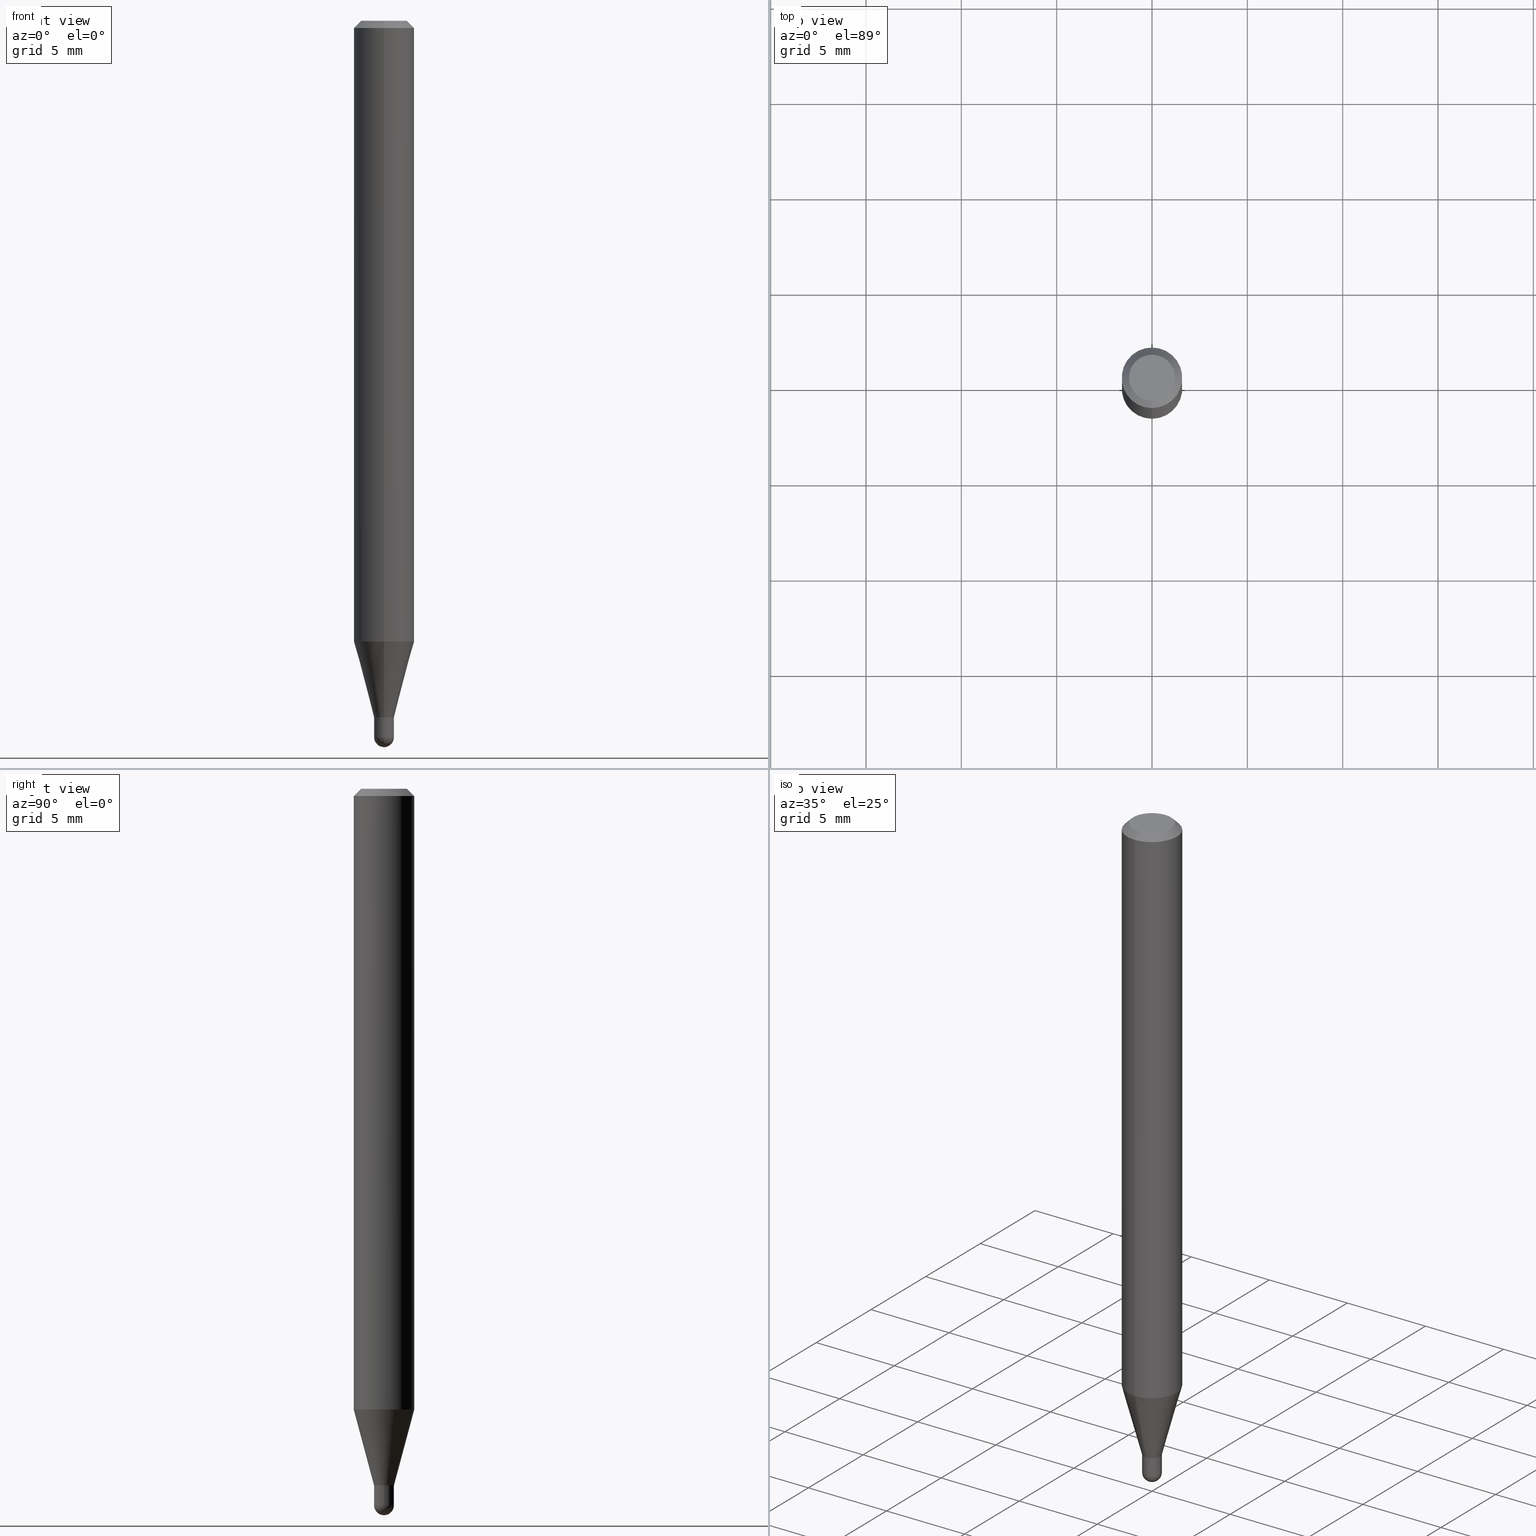
[diagram: canonical four-view strip — front | top / right | iso, engineering-drawing reading convention]
A machine part, canonical four-view strip (front | top / right | iso — engineering-drawing reading convention). The complete STEP part file that produces these views, byte-faithful:
ISO-10303-21;
HEADER;
FILE_DESCRIPTION (( 'STEP AP203' ),
    '1' );
FILE_NAME ('04353.STEP',
    '2024-03-08T18:49:19',
    ( '' ),
    ( '' ),
    'SwSTEP 2.0',
    'SolidWorks 2023',
    '' );
FILE_SCHEMA (( 'CONFIG_CONTROL_DESIGN' ));
ENDSEC;

DATA;
#1 = AXIS2_PLACEMENT_3D ( 'NONE', #435, #464, #112 ) ;
#2 = COORDINATED_UNIVERSAL_TIME_OFFSET ( 5, 0, .BEHIND. ) ;
#3 = AXIS2_PLACEMENT_3D ( 'NONE', #62, #228, #259 ) ;
#4 = CARTESIAN_POINT ( 'NONE',  ( -1.431507348925308261E-16, -0.02050000000000467074, -1.438500000000000334 ) ) ;
#5 = VERTEX_POINT ( 'NONE', #271 ) ;
#6 = DIRECTION ( 'NONE',  ( 1.000000000000000000, -7.105427357601001070E-15, 4.926315508542082329E-29 ) ) ;
#7 = EDGE_CURVE ( 'NONE', #341, #164, #79, .T. ) ;
#8 = PERSON_AND_ORGANIZATION_ROLE ( 'classification_officer' ) ;
#9 = PRODUCT ( '04353', '04353', '', ( #83 ) ) ;
#10 = APPROVAL ( #267, 'UNSPECIFIED' ) ;
#11 = CARTESIAN_POINT ( 'NONE',  ( -1.396592535536901362E-16, -0.02000000000000502418, -1.438499999999999890 ) ) ;
#12 = AXIS2_PLACEMENT_3D ( 'NONE', #43, #320, #359 ) ;
#13 = DIRECTION ( 'NONE',  ( -6.982962677686266711E-15, -1.000000000000000000, 3.491493095811838152E-15 ) ) ;
#14 = COORDINATED_UNIVERSAL_TIME_OFFSET ( 5, 0, .BEHIND. ) ;
#15 = CARTESIAN_POINT ( 'NONE',  ( 3.616318007858092069E-29, -5.168157166756686411E-15, -1.479500000000000259 ) ) ;
#16 = EDGE_CURVE ( 'NONE', #264, #310, #357, .T. ) ;
#17 = CARTESIAN_POINT ( 'NONE',  ( -0.02049999999999999739, -4.948410012541330667E-15, -1.479500000000000481 ) ) ;
#18 = CARTESIAN_POINT ( 'NONE',  ( 1.456612608308565853E-16, 0.02049999999999482098, -1.479500000000000481 ) ) ;
#19 = VECTOR ( 'NONE', #426, 39.37007874015748143 ) ;
#20 = DIRECTION ( 'NONE',  ( -6.982962677686265133E-15, -1.000000000000000000, 0.000000000000000000 ) ) ;
#21 = ORIENTED_EDGE ( 'NONE', *, *, #355, .T. ) ;
#22 = FACE_OUTER_BOUND ( 'NONE', #88, .T. ) ;
#23 = ORIENTED_EDGE ( 'NONE', *, *, #490, .F. ) ;
#24 = ORIENTED_EDGE ( 'NONE', *, *, #57, .T. ) ;
#25 = CARTESIAN_POINT ( 'NONE',  ( 3.517806877697320021E-29, -5.022495905925865349E-15, -1.438500000000000334 ) ) ;
#26 = VECTOR ( 'NONE', #317, 39.37007874015748143 ) ;
#27 = EDGE_LOOP ( 'NONE', ( #206, #457, #159, #24 ) ) ;
#28 = CC_DESIGN_APPROVAL ( #90, ( #415 ) ) ;
#29 = EDGE_CURVE ( 'NONE', #310, #184, #84, .T. ) ;
#30 = FACE_OUTER_BOUND ( 'NONE', #495, .T. ) ;
#31 = ORIENTED_EDGE ( 'NONE', *, *, #283, .F. ) ;
#32 = ORIENTED_EDGE ( 'NONE', *, *, #207, .T. ) ;
#33 = CARTESIAN_POINT ( 'NONE',  ( -1.431507348925660290E-16, -0.02049999999999965045, 7.157560846414145820E-17 ) ) ;
#34 = DIRECTION ( 'NONE',  ( -4.851104656540964275E-15, -0.7071067811865500152, -0.7071067811865450192 ) ) ;
#35 = ORIENTED_EDGE ( 'NONE', *, *, #410, .T. ) ;
#36 = APPLICATION_PROTOCOL_DEFINITION ( 'international standard', 'config_control_design', 1994, #333 ) ;
#37 = DIRECTION ( 'NONE',  ( -2.445460596337778578E-29, 3.491493095811837758E-15, 1.000000000000000000 ) ) ;
#38 = ORIENTED_EDGE ( 'NONE', *, *, #314, .F. ) ;
#39 = AXIS2_PLACEMENT_3D ( 'NONE', #345, #456, #226 ) ;
#40 = APPROVAL_STATUS ( 'not_yet_approved' ) ;
#41 = ORIENTED_EDGE ( 'NONE', *, *, #29, .F. ) ;
#42 = ORIENTED_EDGE ( 'NONE', *, *, #7, .T. ) ;
#43 = CARTESIAN_POINT ( 'NONE',  ( 3.516572337533726564E-29, -5.020767071777423003E-15, -1.438000000000000389 ) ) ;
#44 = VERTEX_POINT ( 'NONE', #472 ) ;
#45 = DIRECTION ( 'NONE',  ( -2.445468806185136597E-29, 3.491481338843145583E-15, 1.000000000000000000 ) ) ;
#46 = LINE ( 'NONE', #4, #486 ) ;
#47 = ORIENTED_EDGE ( 'NONE', *, *, #293, .T. ) ;
#48 = AXIS2_PLACEMENT_3D ( 'NONE', #155, #276, #312 ) ;
#49 = ADVANCED_FACE ( 'NONE', ( #81 ), #442, .T. ) ;
#50 = DATE_TIME_ROLE ( 'classification_date' ) ;
#51 = APPROVAL_PERSON_ORGANIZATION ( #238, #10, #424 ) ;
#52 = LINE ( 'NONE', #477, #198 ) ;
#53 = CC_DESIGN_PERSON_AND_ORGANIZATION_ASSIGNMENT ( #385, #148, ( #415 ) ) ;
#54 = DIRECTION ( 'NONE',  ( 1.000000000000000000, -6.982962677686267499E-15, 4.876176775795935232E-29 ) ) ;
#55 = PRODUCT_DEFINITION_SHAPE ( 'NONE', 'NONE',  #415 ) ;
#56 = DIRECTION ( 'NONE',  ( -6.982962677686266711E-15, -1.000000000000000000, 3.491493095811838152E-15 ) ) ;
#57 = EDGE_CURVE ( 'NONE', #346, #387, #421, .T. ) ;
#58 = CIRCLE ( 'NONE', #91, 0.02000000000000000042 ) ;
#59 = CARTESIAN_POINT ( 'NONE',  ( 1.431507348926036478E-16, 0.02049999999999497710, -1.438500000000000334 ) ) ;
#60 = MANIFOLD_SOLID_BREP ( 'Body-Move/Copy2[2]', #476 ) ;
#61 = FACE_OUTER_BOUND ( 'NONE', #391, .T. ) ;
#62 = CARTESIAN_POINT ( 'NONE',  ( 3.668190894506684298E-31, -5.237239643717779809E-17, -0.01500000000000006710 ) ) ;
#63 = CARTESIAN_POINT ( 'NONE',  ( 3.618071098750910685E-29, -5.165646640818435742E-15, -1.479500000000000481 ) ) ;
#64 = CIRCLE ( 'NONE', #12, 0.02049999999999965045 ) ;
#65 = CC_DESIGN_APPROVAL ( #10, ( #176 ) ) ;
#66 = EDGE_LOOP ( 'NONE', ( #349, #35, #413, #38 ) ) ;
#67 = DIRECTION ( 'NONE',  ( -2.445460596337778578E-29, 3.491493095811837758E-15, 1.000000000000000000 ) ) ;
#68 = ORIENTED_EDGE ( 'NONE', *, *, #119, .T. ) ;
#69 = ORIENTED_EDGE ( 'NONE', *, *, #321, .T. ) ;
#70 = DIRECTION ( 'NONE',  ( -6.982962677686265922E-15, -1.000000000000000000, 3.491493095811837758E-15 ) ) ;
#71 = ORIENTED_EDGE ( 'NONE', *, *, #375, .F. ) ;
#72 = ORIENTED_EDGE ( 'NONE', *, *, #76, .F. ) ;
#73 = CARTESIAN_POINT ( 'NONE',  ( -4.364351673553604601E-16, -0.06250000000000449640, -1.281753866082110838 ) ) ;
#74 = AXIS2_PLACEMENT_3D ( 'NONE', #165, #330, #56 ) ;
#75 = VECTOR ( 'NONE', #106, 39.37007874015748143 ) ;
#76 = EDGE_CURVE ( 'NONE', #222, #412, #141, .T. ) ;
#77 = CARTESIAN_POINT ( 'NONE',  ( 0.000000000000000000, 0.000000000000000000, 0.000000000000000000 ) ) ;
#78 = PERSON_AND_ORGANIZATION ( #256, #170 ) ;
#79 = LINE ( 'NONE', #158, #250 ) ;
#80 = VERTEX_POINT ( 'NONE', #237 ) ;
#81 = FACE_OUTER_BOUND ( 'NONE', #116, .T. ) ;
#82 = LOCAL_TIME ( 13, 49, 19.00000000000000000, #479 ) ;
#83 = MECHANICAL_CONTEXT ( 'NONE', #364, 'mechanical' ) ;
#84 = LINE ( 'NONE', #470, #131 ) ;
#85 = ORIENTED_EDGE ( 'NONE', *, *, #177, .T. ) ;
#86 = CALENDAR_DATE ( 2024, 8, 3 ) ;
#87 = CARTESIAN_POINT ( 'NONE',  ( 3.618071098750910685E-29, -5.165646640818435742E-15, -1.479500000000000481 ) ) ;
#88 = EDGE_LOOP ( 'NONE', ( #41, #195, #42, #313 ) ) ;
#89 = LINE ( 'NONE', #386, #351 ) ;
#90 = APPROVAL ( #40, 'UNSPECIFIED' ) ;
#91 = AXIS2_PLACEMENT_3D ( 'NONE', #401, #332, #123 ) ;
#92 = DIRECTION ( 'NONE',  ( -2.445460596337778298E-29, 3.491493095811837758E-15, 1.000000000000000000 ) ) ;
#93 = DIRECTION ( 'NONE',  ( -2.445460596337778578E-29, 3.491493095811837758E-15, 1.000000000000000000 ) ) ;
#94 = APPROVAL ( #166, 'UNSPECIFIED' ) ;
#95 = VECTOR ( 'NONE', #120, 39.37007874015748143 ) ;
#96 = DIRECTION ( 'NONE',  ( -1.000000000000000000, 6.982962677686265922E-15, -4.876176775795935793E-29 ) ) ;
#97 = FACE_OUTER_BOUND ( 'NONE', #360, .T. ) ;
#98 = DIRECTION ( 'NONE',  ( -2.445460596337778578E-29, 3.491493095811837758E-15, 1.000000000000000000 ) ) ;
#99 = EDGE_LOOP ( 'NONE', ( #471, #21 ) ) ;
#100 = DIRECTION ( 'NONE',  ( -6.982962677686266711E-15, -1.000000000000000000, 0.000000000000000000 ) ) ;
#101 = CC_DESIGN_APPROVAL ( #94, ( #403 ) ) ;
#102 = ORIENTED_EDGE ( 'NONE', *, *, #314, .T. ) ;
#103 = LINE ( 'NONE', #373, #75 ) ;
#104 = ORIENTED_EDGE ( 'NONE', *, *, #355, .F. ) ;
#105 = ORIENTED_EDGE ( 'NONE', *, *, #134, .T. ) ;
#106 = DIRECTION ( 'NONE',  ( 5.024295867788190974E-15, 0.7071067811865681119, 0.7071067811865270336 ) ) ;
#107 = ORIENTED_EDGE ( 'NONE', *, *, #484, .T. ) ;
#108 = AXIS2_PLACEMENT_3D ( 'NONE', #482, #372, #396 ) ;
#109 = ORIENTED_EDGE ( 'NONE', *, *, #485, .F. ) ;
#110 = CIRCLE ( 'NONE', #133, 0.02049999999999999739 ) ;
#111 = CALENDAR_DATE ( 2024, 8, 3 ) ;
#112 = DIRECTION ( 'NONE',  ( -6.982962677686266711E-15, -1.000000000000000000, 0.000000000000000000 ) ) ;
#113 = ORIENTED_EDGE ( 'NONE', *, *, #299, .T. ) ;
#114 = DATE_AND_TIME ( #86, #344 ) ;
#115 = FACE_OUTER_BOUND ( 'NONE', #455, .T. ) ;
#116 = EDGE_LOOP ( 'NONE', ( #145, #261, #102, #295 ) ) ;
#117 = DIRECTION ( 'NONE',  ( -2.445468806185136597E-29, 3.491481338843145583E-15, 1.000000000000000000 ) ) ;
#118 = AXIS2_PLACEMENT_3D ( 'NONE', #59, #439, #96 ) ;
#119 = EDGE_CURVE ( 'NONE', #147, #184, #508, .T. ) ;
#120 = DIRECTION ( 'NONE',  ( 4.937700262164548042E-15, 0.7071067811865451302, -0.7071067811865499042 ) ) ;
#121 = PRODUCT_RELATED_PRODUCT_CATEGORY ( 'detail', '', ( #9 ) ) ;
#122 = CARTESIAN_POINT ( 'NONE',  ( 4.440892098500940720E-16, 0.06249999999999993755, -0.01500000000000028394 ) ) ;
#123 = DIRECTION ( 'NONE',  ( -6.982962677686265922E-15, -1.000000000000000000, 0.000000000000000000 ) ) ;
#124 = AXIS2_PLACEMENT_3D ( 'NONE', #441, #217, #54 ) ;
#125 = AXIS2_PLACEMENT_3D ( 'NONE', #221, #67, #175 ) ;
#126 = DIRECTION ( 'NONE',  ( -2.445460596337778578E-29, 3.491493095811837758E-15, 1.000000000000000000 ) ) ;
#127 = PERSON_AND_ORGANIZATION ( #256, #170 ) ;
#128 = CARTESIAN_POINT ( 'NONE',  ( 3.134478573707413274E-29, -4.475234773955820986E-15, -1.281753866082111060 ) ) ;
#129 = PERSON_AND_ORGANIZATION_ROLE ( 'design_supplier' ) ;
#130 = CARTESIAN_POINT ( 'NONE',  ( 2.948752353404736400E-16, 0.02049999999999462322, -1.438500000000000334 ) ) ;
#131 = VECTOR ( 'NONE', #234, 39.37007874015748143 ) ;
#132 = DIRECTION ( 'NONE',  ( -4.937700262164674260E-15, -0.7071067811865632269, 0.7071067811865319186 ) ) ;
#133 = AXIS2_PLACEMENT_3D ( 'NONE', #510, #45, #311 ) ;
#134 = EDGE_CURVE ( 'NONE', #262, #147, #450, .T. ) ;
#135 = FACE_OUTER_BOUND ( 'NONE', #66, .T. ) ;
#136 = ADVANCED_FACE ( 'NONE', ( #354 ), #174, .T. ) ;
#137 = ORIENTED_EDGE ( 'NONE', *, *, #375, .T. ) ;
#138 = DIRECTION ( 'NONE',  ( -2.445468806185136597E-29, 3.491481338843145583E-15, 1.000000000000000000 ) ) ;
#139 = ORIENTED_EDGE ( 'NONE', *, *, #16, .T. ) ;
#140 = DIRECTION ( 'NONE',  ( -2.445460596337778578E-29, 3.491493095811837758E-15, 1.000000000000000000 ) ) ;
#141 = CIRCLE ( 'NONE', #461, 0.02049999999999999739 ) ;
#142 = AXIS2_PLACEMENT_3D ( 'NONE', #406, #178, #218 ) ;
#143 = EDGE_LOOP ( 'NONE', ( #305, #107, #447, #384, #104 ) ) ;
#144 = DIRECTION ( 'NONE',  ( -2.445460596337778578E-29, 3.491493095811837758E-15, 1.000000000000000000 ) ) ;
#145 = ORIENTED_EDGE ( 'NONE', *, *, #410, .F. ) ;
#146 = FACE_OUTER_BOUND ( 'NONE', #419, .T. ) ;
#147 = VERTEX_POINT ( 'NONE', #392 ) ;
#148 = PERSON_AND_ORGANIZATION_ROLE ( 'creator' ) ;
#149 = CARTESIAN_POINT ( 'NONE',  ( 1.456612608308531833E-16, 0.02049999999999462322, -1.438500000000000334 ) ) ;
#150 = CLOSED_SHELL ( 'NONE', ( #168, #292, #253, #329, #287 ) ) ;
#151 = CIRCLE ( 'NONE', #275, 0.02049999999999999739 ) ;
#152 = ORIENTED_EDGE ( 'NONE', *, *, #212, .T. ) ;
#153 = PERSON_AND_ORGANIZATION ( #256, #170 ) ;
#154 = DIRECTION ( 'NONE',  ( 6.982962677686265922E-15, 1.000000000000000000, -3.483106191921935554E-15 ) ) ;
#155 = CARTESIAN_POINT ( 'NONE',  ( 3.134478573707413274E-29, -4.475234773955820986E-15, -1.281753866082111060 ) ) ;
#156 = EDGE_CURVE ( 'NONE', #310, #341, #288, .T. ) ;
#157 = DIRECTION ( 'NONE',  ( -2.445460596337778578E-29, 3.491493095811837758E-15, 1.000000000000000000 ) ) ;
#158 = CARTESIAN_POINT ( 'NONE',  ( -4.364351673553916201E-16, -0.06250000000000000000, 2.182183184882398598E-16 ) ) ;
#159 = ORIENTED_EDGE ( 'NONE', *, *, #490, .T. ) ;
#160 = AXIS2_PLACEMENT_3D ( 'NONE', #77, #390, #230 ) ;
#161 = CALENDAR_DATE ( 2024, 8, 3 ) ;
#162 = ADVANCED_FACE ( 'NONE', ( #433 ), #239, .T. ) ;
#163 = DIRECTION ( 'NONE',  ( -1.807323732225378654E-15, -0.2588190451025251249, 0.9659258262890670910 ) ) ;
#164 = VERTEX_POINT ( 'NONE', #394 ) ;
#165 = CARTESIAN_POINT ( 'NONE',  ( 0.000000000000000000, 0.000000000000000000, 0.000000000000000000 ) ) ;
#166 = APPROVAL_STATUS ( 'not_yet_approved' ) ;
#167 = DIRECTION ( 'NONE',  ( -2.445460596337778578E-29, 3.491493095811837758E-15, 1.000000000000000000 ) ) ;
#168 = ADVANCED_FACE ( 'NONE', ( #115 ), #315, .T. ) ;
#169 = VECTOR ( 'NONE', #285, 39.37007874015748143 ) ;
#170 = ORGANIZATION ( 'UNSPECIFIED', 'UNSPECIFIED', '' ) ;
#171 = CYLINDRICAL_SURFACE ( 'NONE', #124, 0.02050000000000000086 ) ;
#172 = DIRECTION ( 'NONE',  ( 1.000000000000000000, -6.982962677686265922E-15, 4.883557194083113462E-29 ) ) ;
#173 = FACE_OUTER_BOUND ( 'NONE', #296, .T. ) ;
#174 = CONICAL_SURFACE ( 'NONE', #280, 0.06250000000000000000, 0.7853981633974483900 ) ;
#175 = DIRECTION ( 'NONE',  ( -6.982962677686265922E-15, -1.000000000000000000, 0.000000000000000000 ) ) ;
#176 = PRODUCT_DEFINITION_FORMATION_WITH_SPECIFIED_SOURCE ( 'ANY', '', #9, .NOT_KNOWN. ) ;
#177 = EDGE_CURVE ( 'NONE', #387, #346, #64, .T. ) ;
#178 = DIRECTION ( 'NONE',  ( 2.445460596337778298E-29, -3.491493095811837758E-15, -1.000000000000000000 ) ) ;
#179 = ORIENTED_EDGE ( 'NONE', *, *, #76, .T. ) ;
#180 = ORIENTED_EDGE ( 'NONE', *, *, #183, .T. ) ;
#181 = CYLINDRICAL_SURFACE ( 'NONE', #382, 0.06250000000000000000 ) ;
#182 = ORIENTED_EDGE ( 'NONE', *, *, #475, .F. ) ;
#183 = EDGE_CURVE ( 'NONE', #339, #341, #46, .T. ) ;
#184 = VERTEX_POINT ( 'NONE', #122 ) ;
#185 = DIRECTION ( 'NONE',  ( 1.000000000000000000, -6.982962677686261977E-15, 0.000000000000000000 ) ) ;
#186 = CIRCLE ( 'NONE', #265, 0.02049999999999999739 ) ;
#187 = CIRCLE ( 'NONE', #363, 0.06250000000000000000 ) ;
#188 = ORIENTED_EDGE ( 'NONE', *, *, #193, .F. ) ;
#189 = ORIENTED_EDGE ( 'NONE', *, *, #119, .F. ) ;
#190 = CARTESIAN_POINT ( 'NONE',  ( -0.02050000000000000086, 1.456612608308205442E-16, -1.008381693502255795E-30 ) ) ;
#191 = ORIENTED_EDGE ( 'NONE', *, *, #243, .F. ) ;
#192 = CARTESIAN_POINT ( 'NONE',  ( 3.517795067831895441E-29, -5.022512818325329476E-15, -1.438500000000000334 ) ) ;
#193 = EDGE_CURVE ( 'NONE', #262, #164, #89, .T. ) ;
#194 = CARTESIAN_POINT ( 'NONE',  ( 3.517795067831894881E-29, -5.022512818325328687E-15, -1.438499999999999890 ) ) ;
#195 = ORIENTED_EDGE ( 'NONE', *, *, #156, .T. ) ;
#196 = COORDINATED_UNIVERSAL_TIME_OFFSET ( 5, 0, .BEHIND. ) ;
#197 = DIRECTION ( 'NONE',  ( -6.982962677686266711E-15, -1.000000000000000000, 3.491493095811838152E-15 ) ) ;
#198 = VECTOR ( 'NONE', #126, 39.37007874015748143 ) ;
#199 = APPROVAL_PERSON_ORGANIZATION ( #78, #90, #361 ) ;
#200 = ORIENTED_EDGE ( 'NONE', *, *, #156, .F. ) ;
#201 = CARTESIAN_POINT ( 'NONE',  ( 0.02050000000000000086, -5.165646640818434164E-15, -1.438500000000000334 ) ) ;
#202 = DIRECTION ( 'NONE',  ( -2.445460596337778578E-29, 3.491493095811837758E-15, 1.000000000000000000 ) ) ;
#203 = ADVANCED_FACE ( 'NONE', ( #247 ), #399, .F. ) ;
#204 = COORDINATED_UNIVERSAL_TIME_OFFSET ( 5, 0, .BEHIND. ) ;
#205 = ORIENTED_EDGE ( 'NONE', *, *, #342, .T. ) ;
#206 = ORIENTED_EDGE ( 'NONE', *, *, #321, .F. ) ;
#207 = EDGE_CURVE ( 'NONE', #147, #262, #274, .T. ) ;
#208 = DIRECTION ( 'NONE',  ( -6.982962677686265922E-15, -1.000000000000000000, 3.491493095811837758E-15 ) ) ;
#209 = CIRCLE ( 'NONE', #335, 0.02049999999999998004 ) ;
#210 = DIRECTION ( 'NONE',  ( -2.445460596337778578E-29, 3.491493095811837758E-15, 1.000000000000000000 ) ) ;
#211 = DIRECTION ( 'NONE',  ( -6.982962677686266711E-15, -1.000000000000000000, 0.000000000000000000 ) ) ;
#212 = EDGE_CURVE ( 'NONE', #44, #412, #308, .T. ) ;
#213 = PLANE ( 'NONE',  #118 ) ;
#214 = CIRCLE ( 'NONE', #343, 0.06250000000000000000 ) ;
#215 = CONICAL_SURFACE ( 'NONE', #443, 0.02049999999999964698, 0.2617993877991574569 ) ;
#216 = DIRECTION ( 'NONE',  ( 1.000000000000000000, -6.982962677686262766E-15, 0.000000000000000000 ) ) ;
#217 = DIRECTION ( 'NONE',  ( -2.445468806185136597E-29, 3.491481338843145583E-15, 1.000000000000000000 ) ) ;
#218 = DIRECTION ( 'NONE',  ( 6.982962677686265922E-15, 1.000000000000000000, -3.491493095811837758E-15 ) ) ;
#219 = AXIS2_PLACEMENT_3D ( 'NONE', #251, #210, #211 ) ;
#220 = AXIS2_PLACEMENT_3D ( 'NONE', #25, #138, #185 ) ;
#221 = CARTESIAN_POINT ( 'NONE',  ( 3.517795067831894881E-29, -5.022512818325328687E-15, -1.438499999999999890 ) ) ;
#222 = VERTEX_POINT ( 'NONE', #474 ) ;
#223 = ORIENTED_EDGE ( 'NONE', *, *, #299, .F. ) ;
#224 = CARTESIAN_POINT ( 'NONE',  ( 3.616318007858092069E-29, -5.168157166756686411E-15, -1.479500000000000259 ) ) ;
#225 = VERTEX_POINT ( 'NONE', #290 ) ;
#226 = DIRECTION ( 'NONE',  ( -6.982962677686266711E-15, -1.000000000000000000, 3.491493095811838152E-15 ) ) ;
#227 = EDGE_LOOP ( 'NONE', ( #417, #137, #509, #223 ) ) ;
#228 = DIRECTION ( 'NONE',  ( 2.445460596337778578E-29, -3.491493095811837758E-15, -1.000000000000000000 ) ) ;
#229 = CIRCLE ( 'NONE', #220, 0.02050000000000000086 ) ;
#230 = DIRECTION ( 'NONE',  ( 1.000000000000000000, 0.000000000000000000, 0.000000000000000000 ) ) ;
#231 = EDGE_LOOP ( 'NONE', ( #47, #139, #272, #468 ) ) ;
#232 =( LENGTH_UNIT ( ) NAMED_UNIT ( * ) SI_UNIT ( $, .METRE. ) );
#233 = DIRECTION ( 'NONE',  ( -2.445460596337778578E-29, 3.491493095811837758E-15, 1.000000000000000000 ) ) ;
#234 = DIRECTION ( 'NONE',  ( -2.445460596337778578E-29, 3.491493095811837758E-15, 1.000000000000000000 ) ) ;
#235 = AXIS2_PLACEMENT_3D ( 'NONE', #511, #37, #197 ) ;
#236 = DIRECTION ( 'NONE',  ( 1.000000000000000000, -6.982962677686262766E-15, 0.000000000000000000 ) ) ;
#237 = CARTESIAN_POINT ( 'NONE',  ( -1.431507348925322066E-16, -0.02050000000000515646, -1.479500000000000481 ) ) ;
#238 = PERSON_AND_ORGANIZATION ( #256, #170 ) ;
#239 = CYLINDRICAL_SURFACE ( 'NONE', #501, 0.06250000000000000000 ) ;
#240 = PERSON_AND_ORGANIZATION ( #256, #170 ) ;
#241 = CARTESIAN_POINT ( 'NONE',  ( 0.02050000000000000086, -1.431507348925684942E-16, 9.996162390381667465E-31 ) ) ;
#242 = APPROVAL_PERSON_ORGANIZATION ( #240, #94, #481 ) ;
#243 = EDGE_CURVE ( 'NONE', #225, #5, #58, .T. ) ;
#244 = DIRECTION ( 'NONE',  ( -6.982962677686265922E-15, -1.000000000000000000, 3.491493095811837758E-15 ) ) ;
#245 = ADVANCED_FACE ( 'NONE', ( #61 ), #279, .F. ) ;
#246 = SHAPE_DEFINITION_REPRESENTATION ( #55, #277 ) ;
#247 = FACE_OUTER_BOUND ( 'NONE', #27, .T. ) ;
#248 = CARTESIAN_POINT ( 'NONE',  ( -3.773273898774340269E-16, -0.04749999999999999362, 1.003462464546789391E-16 ) ) ;
#249 = EDGE_CURVE ( 'NONE', #341, #310, #214, .T. ) ;
#250 = VECTOR ( 'NONE', #202, 39.37007874015748143 ) ;
#251 = CARTESIAN_POINT ( 'NONE',  ( 3.517795067831895441E-29, -5.022512818325329476E-15, -1.438500000000000334 ) ) ;
#252 = CC_DESIGN_PERSON_AND_ORGANIZATION_ASSIGNMENT ( #356, #129, ( #176 ) ) ;
#253 = ADVANCED_FACE ( 'NONE', ( #284 ), #213, .F. ) ;
#254 = PLANE ( 'NONE',  #142 ) ;
#255 = UNCERTAINTY_MEASURE_WITH_UNIT (LENGTH_MEASURE( 1.000000000000000082E-05 ), #358, 'distance_accuracy_value', 'NONE');
#256 = PERSON ( 'UNSPECIFIED', 'UNSPECIFIED', 'UNSPECIFIED', ('UNSPECIFIED'), ('UNSPECIFIED'), ('UNSPECIFIED') ) ;
#257 = DIRECTION ( 'NONE',  ( -6.982962677686265922E-15, -1.000000000000000000, 0.000000000000000000 ) ) ;
#258 = AXIS2_PLACEMENT_3D ( 'NONE', #411, #489, #383 ) ;
#259 = DIRECTION ( 'NONE',  ( 6.982962677686265922E-15, 1.000000000000000000, -3.483106191921935554E-15 ) ) ;
#260 = DIRECTION ( 'NONE',  ( -6.982962677686266711E-15, -1.000000000000000000, 0.000000000000000000 ) ) ;
#261 = ORIENTED_EDGE ( 'NONE', *, *, #475, .T. ) ;
#262 = VERTEX_POINT ( 'NONE', #248 ) ;
#263 = CARTESIAN_POINT ( 'NONE',  ( 3.668190894506684298E-31, -5.237239643717779809E-17, -0.01500000000000006710 ) ) ;
#264 = VERTEX_POINT ( 'NONE', #130 ) ;
#265 = AXIS2_PLACEMENT_3D ( 'NONE', #331, #405, #216 ) ;
#266 = LOCAL_TIME ( 13, 49, 19.00000000000000000, #196 ) ;
#267 = APPROVAL_STATUS ( 'not_yet_approved' ) ;
#268 = DIRECTION ( 'NONE',  ( -2.445468806185136597E-29, 3.491481338843145583E-15, 1.000000000000000000 ) ) ;
#269 = DIMENSIONAL_EXPONENTS ( 1.000000000000000000, 0.000000000000000000, 0.000000000000000000, 0.000000000000000000, 0.000000000000000000, 0.000000000000000000, 0.000000000000000000 ) ;
#270 = APPLICATION_PROTOCOL_DEFINITION ( 'international standard', 'config_control_design', 1994, #364 ) ;
#271 = CARTESIAN_POINT ( 'NONE',  ( 1.438849039914541639E-16, 0.01999999999999497666, -1.438499999999999890 ) ) ;
#272 = ORIENTED_EDGE ( 'NONE', *, *, #249, .F. ) ;
#273 = DIRECTION ( 'NONE',  ( 1.000000000000000000, -6.982962677686267499E-15, 4.876176775795935232E-29 ) ) ;
#274 = CIRCLE ( 'NONE', #368, 0.04749999999999999362 ) ;
#275 = AXIS2_PLACEMENT_3D ( 'NONE', #63, #338, #236 ) ;
#276 = DIRECTION ( 'NONE',  ( -2.445460596337778578E-29, 3.491493095811837758E-15, 1.000000000000000000 ) ) ;
#277 = ADVANCED_BREP_SHAPE_REPRESENTATION ( '04353', ( #395, #60, #160 ), #397 ) ;
#278 = DIRECTION ( 'NONE',  ( -6.982962677686265922E-15, -1.000000000000000000, 0.000000000000000000 ) ) ;
#279 = PLANE ( 'NONE',  #374 ) ;
#280 = AXIS2_PLACEMENT_3D ( 'NONE', #427, #504, #154 ) ;
#281 = CC_DESIGN_DATE_AND_TIME_ASSIGNMENT ( #371, #50, ( #403 ) ) ;
#282 = FACE_OUTER_BOUND ( 'NONE', #227, .T. ) ;
#283 = EDGE_CURVE ( 'NONE', #222, #496, #398, .T. ) ;
#284 = FACE_OUTER_BOUND ( 'NONE', #99, .T. ) ;
#285 = DIRECTION ( 'NONE',  ( -2.445468806185136877E-29, 3.491481338843145188E-15, 1.000000000000000000 ) ) ;
#286 = DESIGN_CONTEXT ( 'detailed design', #333, 'design' ) ;
#287 = ADVANCED_FACE ( 'NONE', ( #367 ), #171, .T. ) ;
#288 = CIRCLE ( 'NONE', #48, 0.06250000000000000000 ) ;
#289 = AXIS2_PLACEMENT_3D ( 'NONE', #494, #140, #414 ) ;
#290 = CARTESIAN_POINT ( 'NONE',  ( -1.396592535536901362E-16, -0.02000000000000502418, -1.438499999999999890 ) ) ;
#291 = LINE ( 'NONE', #190, #429 ) ;
#292 = ADVANCED_FACE ( 'NONE', ( #173 ), #370, .T. ) ;
#293 = EDGE_CURVE ( 'NONE', #339, #264, #402, .T. ) ;
#294 = CARTESIAN_POINT ( 'NONE',  ( 3.517795067831895441E-29, -5.022512818325329476E-15, -1.438500000000000334 ) ) ;
#295 = ORIENTED_EDGE ( 'NONE', *, *, #177, .F. ) ;
#296 = EDGE_LOOP ( 'NONE', ( #71, #152, #72, #109 ) ) ;
#297 = DIRECTION ( 'NONE',  ( -1.000000000000000000, 6.982962677686265922E-15, -4.883557194083112340E-29 ) ) ;
#298 = ORIENTED_EDGE ( 'NONE', *, *, #16, .F. ) ;
#299 = EDGE_CURVE ( 'NONE', #412, #304, #186, .T. ) ;
#300 = DIRECTION ( 'NONE',  ( -2.445460596337778578E-29, 3.491493095811837758E-15, 1.000000000000000000 ) ) ;
#301 = ORIENTED_EDGE ( 'NONE', *, *, #505, .T. ) ;
#302 = DIRECTION ( 'NONE',  ( -6.982962677686265922E-15, -1.000000000000000000, 3.483106191921935554E-15 ) ) ;
#303 = EDGE_CURVE ( 'NONE', #496, #377, #334, .T. ) ;
#304 = VERTEX_POINT ( 'NONE', #17 ) ;
#305 = ORIENTED_EDGE ( 'NONE', *, *, #347, .F. ) ;
#306 = AXIS2_PLACEMENT_3D ( 'NONE', #365, #6, #324 ) ;
#307 = DATE_TIME_ROLE ( 'creation_date' ) ;
#308 = CIRCLE ( 'NONE', #306, 0.02049999999999998004 ) ;
#309 = CC_DESIGN_SECURITY_CLASSIFICATION ( #403, ( #176 ) ) ;
#310 = VERTEX_POINT ( 'NONE', #483 ) ;
#311 = DIRECTION ( 'NONE',  ( 1.000000000000000000, -6.982962677686262766E-15, 0.000000000000000000 ) ) ;
#312 = DIRECTION ( 'NONE',  ( -6.982962677686265922E-15, -1.000000000000000000, 4.370956789862821150E-15 ) ) ;
#313 = ORIENTED_EDGE ( 'NONE', *, *, #342, .F. ) ;
#314 = EDGE_CURVE ( 'NONE', #225, #346, #366, .T. ) ;
#315 = CYLINDRICAL_SURFACE ( 'NONE', #492, 0.02050000000000000086 ) ;
#316 =( NAMED_UNIT ( * ) PLANE_ANGLE_UNIT ( ) SI_UNIT ( $, .RADIAN. ) );
#317 = DIRECTION ( 'NONE',  ( 1.839019923739649619E-15, 0.2588190451025318972, 0.9659258262890653146 ) ) ;
#318 = AXIS2_PLACEMENT_3D ( 'NONE', #194, #233, #278 ) ;
#319 = CONICAL_SURFACE ( 'NONE', #438, 0.02049999999999964698, 0.2617993877991574569 ) ;
#320 = DIRECTION ( 'NONE',  ( -2.445460596337778578E-29, 3.491493095811837758E-15, 1.000000000000000000 ) ) ;
#321 = EDGE_CURVE ( 'NONE', #264, #387, #52, .T. ) ;
#322 = EDGE_LOOP ( 'NONE', ( #416, #69, #85, #23 ) ) ;
#323 = CC_DESIGN_PERSON_AND_ORGANIZATION_ASSIGNMENT ( #431, #463, ( #9 ) ) ;
#324 = DIRECTION ( 'NONE',  ( 7.105427357601000281E-15, 1.000000000000000000, 0.000000000000000000 ) ) ;
#325 = APPROVAL_DATE_TIME ( #440, #94 ) ;
#326 = DIRECTION ( 'NONE',  ( -6.982962677686265922E-15, -1.000000000000000000, 0.000000000000000000 ) ) ;
#327 = CIRCLE ( 'NONE', #289, 0.06250000000000000000 ) ;
#328 = LOCAL_TIME ( 13, 49, 19.00000000000000000, #14 ) ;
#329 = ADVANCED_FACE ( 'NONE', ( #282 ), #348, .T. ) ;
#330 = DIRECTION ( 'NONE',  ( -2.445460596337778578E-29, 3.491493095811837758E-15, 1.000000000000000000 ) ) ;
#331 = CARTESIAN_POINT ( 'NONE',  ( 3.618071098750910685E-29, -5.165646640818435742E-15, -1.479500000000000481 ) ) ;
#332 = DIRECTION ( 'NONE',  ( -2.445460596337778578E-29, 3.491493095811837758E-15, 1.000000000000000000 ) ) ;
#333 = APPLICATION_CONTEXT ( 'configuration controlled 3d designs of mechanical parts and assemblies' ) ;
#334 = CIRCLE ( 'NONE', #108, 0.02050000000000000086 ) ;
#335 = AXIS2_PLACEMENT_3D ( 'NONE', #224, #297, #20 ) ;
#336 = FACE_OUTER_BOUND ( 'NONE', #231, .T. ) ;
#337 = ADVANCED_FACE ( 'NONE', ( #135 ), #389, .T. ) ;
#338 = DIRECTION ( 'NONE',  ( -2.445468806185136597E-29, 3.491481338843145583E-15, 1.000000000000000000 ) ) ;
#339 = VERTEX_POINT ( 'NONE', #340 ) ;
#340 = CARTESIAN_POINT ( 'NONE',  ( -1.431507348925308261E-16, -0.02050000000000467074, -1.438500000000000334 ) ) ;
#341 = VERTEX_POINT ( 'NONE', #73 ) ;
#342 = EDGE_CURVE ( 'NONE', #184, #164, #327, .T. ) ;
#343 = AXIS2_PLACEMENT_3D ( 'NONE', #128, #93, #444 ) ;
#344 = LOCAL_TIME ( 13, 49, 19.00000000000000000, #204 ) ;
#345 = CARTESIAN_POINT ( 'NONE',  ( 0.000000000000000000, 0.000000000000000000, 0.000000000000000000 ) ) ;
#346 = VERTEX_POINT ( 'NONE', #491 ) ;
#347 = EDGE_CURVE ( 'NONE', #304, #377, #291, .T. ) ;
#348 = SPHERICAL_SURFACE ( 'NONE', #258, 0.02049999999999998004 ) ;
#349 = ORIENTED_EDGE ( 'NONE', *, *, #243, .T. ) ;
#350 = ORIENTED_EDGE ( 'NONE', *, *, #249, .T. ) ;
#351 = VECTOR ( 'NONE', #34, 39.37007874015748143 ) ;
#352 = APPROVAL_DATE_TIME ( #423, #90 ) ;
#353 = AXIS2_PLACEMENT_3D ( 'NONE', #192, #157, #428 ) ;
#354 = FACE_OUTER_BOUND ( 'NONE', #506, .T. ) ;
#355 = EDGE_CURVE ( 'NONE', #377, #496, #229, .T. ) ;
#356 = PERSON_AND_ORGANIZATION ( #256, #170 ) ;
#357 = LINE ( 'NONE', #149, #26 ) ;
#358 =( CONVERSION_BASED_UNIT ( 'INCH', #469 ) LENGTH_UNIT ( ) NAMED_UNIT ( #269 ) );
#359 = DIRECTION ( 'NONE',  ( -6.982962677686266711E-15, -1.000000000000000000, 0.000000000000000000 ) ) ;
#360 = EDGE_LOOP ( 'NONE', ( #32, #105 ) ) ;
#361 = APPROVAL_ROLE ( '' ) ;
#362 = CARTESIAN_POINT ( 'NONE',  ( 0.000000000000000000, 0.000000000000000000, 0.000000000000000000 ) ) ;
#363 = AXIS2_PLACEMENT_3D ( 'NONE', #263, #418, #302 ) ;
#364 = APPLICATION_CONTEXT ( 'configuration controlled 3d designs of mechanical parts and assemblies' ) ;
#365 = CARTESIAN_POINT ( 'NONE',  ( 3.616318007858092069E-29, -5.168157166756686411E-15, -1.479500000000000259 ) ) ;
#366 = LINE ( 'NONE', #11, #409 ) ;
#367 = FACE_OUTER_BOUND ( 'NONE', #143, .T. ) ;
#368 = AXIS2_PLACEMENT_3D ( 'NONE', #480, #167, #13 ) ;
#369 = SECURITY_CLASSIFICATION_LEVEL ( 'unclassified' ) ;
#370 = SPHERICAL_SURFACE ( 'NONE', #436, 0.02049999999999998004 ) ;
#371 = DATE_AND_TIME ( #473, #82 ) ;
#372 = DIRECTION ( 'NONE',  ( -2.445468806185136597E-29, 3.491481338843145583E-15, 1.000000000000000000 ) ) ;
#373 = CARTESIAN_POINT ( 'NONE',  ( 1.421085471520551937E-16, 0.01999999999999497666, -1.438499999999999890 ) ) ;
#374 = AXIS2_PLACEMENT_3D ( 'NONE', #437, #92, #244 ) ;
#375 = EDGE_CURVE ( 'NONE', #44, #80, #209, .T. ) ;
#376 = CARTESIAN_POINT ( 'NONE',  ( 3.517795067831895441E-29, -5.022512818325329476E-15, -1.438500000000000334 ) ) ;
#377 = VERTEX_POINT ( 'NONE', #378 ) ;
#378 = CARTESIAN_POINT ( 'NONE',  ( -0.02050000000000000086, -4.948410012541330667E-15, -1.438500000000000334 ) ) ;
#379 = ADVANCED_FACE ( 'NONE', ( #336 ), #215, .T. ) ;
#380 = DIRECTION ( 'NONE',  ( -2.445460596337778578E-29, 3.491493095811837758E-15, 1.000000000000000000 ) ) ;
#381 = ORIENTED_EDGE ( 'NONE', *, *, #29, .T. ) ;
#382 = AXIS2_PLACEMENT_3D ( 'NONE', #497, #300, #70 ) ;
#383 = DIRECTION ( 'NONE',  ( -6.982962677686265922E-15, -1.000000000000000000, 0.000000000000000000 ) ) ;
#384 = ORIENTED_EDGE ( 'NONE', *, *, #283, .T. ) ;
#385 = PERSON_AND_ORGANIZATION ( #256, #170 ) ;
#386 = CARTESIAN_POINT ( 'NONE',  ( -4.287811248607203282E-16, -0.06250000000000005551, -0.01499999999999984852 ) ) ;
#387 = VERTEX_POINT ( 'NONE', #448 ) ;
#388 = CARTESIAN_POINT ( 'NONE',  ( 4.364351673553919652E-16, 0.06249999999999995143, -0.01500000000000028394 ) ) ;
#389 = CONICAL_SURFACE ( 'NONE', #125, 0.02000000000000000042, 0.7853981633974739252 ) ;
#390 = DIRECTION ( 'NONE',  ( 0.000000000000000000, 0.000000000000000000, 1.000000000000000000 ) ) ;
#391 = EDGE_LOOP ( 'NONE', ( #191, #182 ) ) ;
#392 = CARTESIAN_POINT ( 'NONE',  ( 3.840629472727447874E-16, 0.04749999999999999362, -2.313455976474456035E-16 ) ) ;
#393 = ADVANCED_FACE ( 'NONE', ( #146 ), #502, .T. ) ;
#394 = CARTESIAN_POINT ( 'NONE',  ( -4.364351673553912750E-16, -0.06250000000000005551, -0.01499999999999984852 ) ) ;
#395 = MANIFOLD_SOLID_BREP ( 'Body-Move/Copy2[1]', #150 ) ;
#396 = DIRECTION ( 'NONE',  ( 1.000000000000000000, -6.982962677686261977E-15, 0.000000000000000000 ) ) ;
#397 =( GEOMETRIC_REPRESENTATION_CONTEXT ( 3 ) GLOBAL_UNCERTAINTY_ASSIGNED_CONTEXT ( ( #255 ) ) GLOBAL_UNIT_ASSIGNED_CONTEXT ( ( #358, #316, #499 ) ) REPRESENTATION_CONTEXT ( 'NONE', 'WORKASPACE' ) );
#398 = LINE ( 'NONE', #241, #169 ) ;
#399 = CYLINDRICAL_SURFACE ( 'NONE', #74, 0.02049999999999965045 ) ;
#400 = ADVANCED_FACE ( 'NONE', ( #22 ), #181, .T. ) ;
#401 = CARTESIAN_POINT ( 'NONE',  ( 3.517795067831894881E-29, -5.022512818325328687E-15, -1.438499999999999890 ) ) ;
#402 = CIRCLE ( 'NONE', #219, 0.02049999999999964698 ) ;
#403 = SECURITY_CLASSIFICATION ( '', '', #369 ) ;
#404 = CALENDAR_DATE ( 2024, 8, 3 ) ;
#405 = DIRECTION ( 'NONE',  ( -2.445468806185136597E-29, 3.491481338843145583E-15, 1.000000000000000000 ) ) ;
#406 = CARTESIAN_POINT ( 'NONE',  ( 3.316907271900976096E-16, 0.04749999999999999362, -1.985957598492539435E-16 ) ) ;
#407 = ADVANCED_FACE ( 'NONE', ( #488 ), #454, .F. ) ;
#408 = DIRECTION ( 'NONE',  ( -2.445468806185136877E-29, 3.491481338843145188E-15, 1.000000000000000000 ) ) ;
#409 = VECTOR ( 'NONE', #132, 39.37007874015748143 ) ;
#410 = EDGE_CURVE ( 'NONE', #5, #387, #103, .T. ) ;
#411 = CARTESIAN_POINT ( 'NONE',  ( 3.616318007858092069E-29, -5.168157166756686411E-15, -1.479500000000000259 ) ) ;
#412 = VERTEX_POINT ( 'NONE', #18 ) ;
#413 = ORIENTED_EDGE ( 'NONE', *, *, #57, .F. ) ;
#414 = DIRECTION ( 'NONE',  ( -6.982962677686265922E-15, -1.000000000000000000, 3.483106191921935554E-15 ) ) ;
#415 = PRODUCT_DEFINITION ( 'UNKNOWN', '', #176, #286 ) ;
#416 = ORIENTED_EDGE ( 'NONE', *, *, #505, .F. ) ;
#417 = ORIENTED_EDGE ( 'NONE', *, *, #212, .F. ) ;
#418 = DIRECTION ( 'NONE',  ( -2.445460596337778578E-29, 3.491493095811837758E-15, 1.000000000000000000 ) ) ;
#419 = EDGE_LOOP ( 'NONE', ( #498, #434, #420, #189 ) ) ;
#420 = ORIENTED_EDGE ( 'NONE', *, *, #453, .T. ) ;
#421 = CIRCLE ( 'NONE', #1, 0.02049999999999965045 ) ;
#422 = CIRCLE ( 'NONE', #487, 0.02000000000000000042 ) ;
#423 = DATE_AND_TIME ( #111, #266 ) ;
#424 = APPROVAL_ROLE ( '' ) ;
#425 = DIRECTION ( 'NONE',  ( 1.000000000000000000, -6.982962677686262766E-15, 0.000000000000000000 ) ) ;
#426 = DIRECTION ( 'NONE',  ( -2.445460596337778578E-29, 3.491493095811837758E-15, 1.000000000000000000 ) ) ;
#427 = CARTESIAN_POINT ( 'NONE',  ( 3.668190894506684298E-31, -5.237239643717779809E-17, -0.01500000000000006710 ) ) ;
#428 = DIRECTION ( 'NONE',  ( -6.982962677686266711E-15, -1.000000000000000000, 0.000000000000000000 ) ) ;
#429 = VECTOR ( 'NONE', #408, 39.37007874015748143 ) ;
#430 = DIRECTION ( 'NONE',  ( -2.445460596337778578E-29, 3.491493095811837758E-15, 1.000000000000000000 ) ) ;
#431 = PERSON_AND_ORGANIZATION ( #256, #170 ) ;
#432 = CC_DESIGN_PERSON_AND_ORGANIZATION_ASSIGNMENT ( #153, #466, ( #176 ) ) ;
#433 = FACE_OUTER_BOUND ( 'NONE', #500, .T. ) ;
#434 = ORIENTED_EDGE ( 'NONE', *, *, #193, .T. ) ;
#435 = CARTESIAN_POINT ( 'NONE',  ( 3.516572337533726564E-29, -5.020767071777423003E-15, -1.438000000000000389 ) ) ;
#436 = AXIS2_PLACEMENT_3D ( 'NONE', #15, #172, #326 ) ;
#437 = CARTESIAN_POINT ( 'NONE',  ( 3.517795067831894881E-29, -5.022512818325328687E-15, -1.438499999999999890 ) ) ;
#438 = AXIS2_PLACEMENT_3D ( 'NONE', #376, #380, #260 ) ;
#439 = DIRECTION ( 'NONE',  ( 2.438088387897960049E-29, -3.491481338843145188E-15, -1.000000000000000000 ) ) ;
#440 = DATE_AND_TIME ( #404, #328 ) ;
#441 = CARTESIAN_POINT ( 'NONE',  ( 0.000000000000000000, 0.000000000000000000, 0.000000000000000000 ) ) ;
#442 = CONICAL_SURFACE ( 'NONE', #318, 0.02000000000000000042, 0.7853981633974739252 ) ;
#443 = AXIS2_PLACEMENT_3D ( 'NONE', #294, #144, #100 ) ;
#444 = DIRECTION ( 'NONE',  ( -6.982962677686265922E-15, -1.000000000000000000, 4.370956789862821150E-15 ) ) ;
#445 = ADVANCED_FACE ( 'NONE', ( #30 ), #319, .T. ) ;
#446 = CARTESIAN_POINT ( 'NONE',  ( 3.517795067831894881E-29, -5.022512818325328687E-15, -1.438499999999999890 ) ) ;
#447 = ORIENTED_EDGE ( 'NONE', *, *, #485, .T. ) ;
#448 = CARTESIAN_POINT ( 'NONE',  ( 1.456612608308526903E-16, 0.02049999999999456077, -1.438000000000000389 ) ) ;
#449 = ORIENTED_EDGE ( 'NONE', *, *, #303, .F. ) ;
#450 = CIRCLE ( 'NONE', #235, 0.04749999999999999362 ) ;
#451 = ORIENTED_EDGE ( 'NONE', *, *, #347, .T. ) ;
#452 = CC_DESIGN_PERSON_AND_ORGANIZATION_ASSIGNMENT ( #127, #8, ( #403 ) ) ;
#453 = EDGE_CURVE ( 'NONE', #164, #184, #187, .T. ) ;
#454 = CYLINDRICAL_SURFACE ( 'NONE', #39, 0.02049999999999965045 ) ;
#455 = EDGE_LOOP ( 'NONE', ( #113, #451, #449, #31, #179 ) ) ;
#456 = DIRECTION ( 'NONE',  ( -2.445460596337778578E-29, 3.491493095811837758E-15, 1.000000000000000000 ) ) ;
#457 = ORIENTED_EDGE ( 'NONE', *, *, #293, .F. ) ;
#458 = DATE_AND_TIME ( #161, #462 ) ;
#459 = ORIENTED_EDGE ( 'NONE', *, *, #453, .F. ) ;
#460 = ADVANCED_FACE ( 'NONE', ( #97 ), #254, .F. ) ;
#461 = AXIS2_PLACEMENT_3D ( 'NONE', #87, #268, #425 ) ;
#462 = LOCAL_TIME ( 13, 49, 19.00000000000000000, #2 ) ;
#463 = PERSON_AND_ORGANIZATION_ROLE ( 'design_owner' ) ;
#464 = DIRECTION ( 'NONE',  ( -2.445460596337778578E-29, 3.491493095811837758E-15, 1.000000000000000000 ) ) ;
#465 = CC_DESIGN_DATE_AND_TIME_ASSIGNMENT ( #114, #307, ( #415 ) ) ;
#466 = PERSON_AND_ORGANIZATION_ROLE ( 'creator' ) ;
#467 = CARTESIAN_POINT ( 'NONE',  ( 0.000000000000000000, 0.000000000000000000, 0.000000000000000000 ) ) ;
#468 = ORIENTED_EDGE ( 'NONE', *, *, #183, .F. ) ;
#469 = LENGTH_MEASURE_WITH_UNIT ( LENGTH_MEASURE( 0.02539999999999999897 ), #232 );
#470 = CARTESIAN_POINT ( 'NONE',  ( 4.440892098500625669E-16, 0.06250000000000000000, -2.182183184882398598E-16 ) ) ;
#471 = ORIENTED_EDGE ( 'NONE', *, *, #303, .T. ) ;
#472 = CARTESIAN_POINT ( 'NONE',  ( 3.665573572938478373E-29, -5.240987797172096548E-15, -1.500000000000000222 ) ) ;
#473 = CALENDAR_DATE ( 2024, 8, 3 ) ;
#474 = CARTESIAN_POINT ( 'NONE',  ( 0.02049999999999999739, -5.237222008264718177E-15, -1.479500000000000481 ) ) ;
#475 = EDGE_CURVE ( 'NONE', #5, #225, #422, .T. ) ;
#476 = CLOSED_SHELL ( 'NONE', ( #407, #337, #393, #162, #379, #445, #400, #136, #460, #245, #49, #203 ) ) ;
#477 = CARTESIAN_POINT ( 'NONE',  ( 1.456612608308180297E-16, 0.02049999999999965045, -7.157560846414145820E-17 ) ) ;
#478 = CIRCLE ( 'NONE', #353, 0.02049999999999964698 ) ;
#479 = COORDINATED_UNIVERSAL_TIME_OFFSET ( 5, 0, .BEHIND. ) ;
#480 = CARTESIAN_POINT ( 'NONE',  ( 1.601768757438626220E-45, -2.286916651226875284E-31, -6.549967559638333218E-17 ) ) ;
#481 = APPROVAL_ROLE ( '' ) ;
#482 = CARTESIAN_POINT ( 'NONE',  ( 3.517806877697320021E-29, -5.022495905925865349E-15, -1.438500000000000334 ) ) ;
#483 = CARTESIAN_POINT ( 'NONE',  ( 4.440892098500937762E-16, 0.06249999999999551054, -1.281753866082111282 ) ) ;
#484 = EDGE_CURVE ( 'NONE', #304, #80, #151, .T. ) ;
#485 = EDGE_CURVE ( 'NONE', #80, #222, #110, .T. ) ;
#486 = VECTOR ( 'NONE', #163, 39.37007874015748854 ) ;
#487 = AXIS2_PLACEMENT_3D ( 'NONE', #446, #98, #257 ) ;
#488 = FACE_OUTER_BOUND ( 'NONE', #322, .T. ) ;
#489 = DIRECTION ( 'NONE',  ( 1.000000000000000000, -6.982962677686265922E-15, 4.883557194083113462E-29 ) ) ;
#490 = EDGE_CURVE ( 'NONE', #339, #346, #507, .T. ) ;
#491 = CARTESIAN_POINT ( 'NONE',  ( -1.431507348925313438E-16, -0.02050000000000474359, -1.438000000000000389 ) ) ;
#492 = AXIS2_PLACEMENT_3D ( 'NONE', #362, #117, #273 ) ;
#493 = ORIENTED_EDGE ( 'NONE', *, *, #7, .F. ) ;
#494 = CARTESIAN_POINT ( 'NONE',  ( 3.668190894506684298E-31, -5.237239643717779809E-17, -0.01500000000000006710 ) ) ;
#495 = EDGE_LOOP ( 'NONE', ( #298, #301, #180, #200 ) ) ;
#496 = VERTEX_POINT ( 'NONE', #201 ) ;
#497 = CARTESIAN_POINT ( 'NONE',  ( 0.000000000000000000, 0.000000000000000000, 0.000000000000000000 ) ) ;
#498 = ORIENTED_EDGE ( 'NONE', *, *, #134, .F. ) ;
#499 =( NAMED_UNIT ( * ) SI_UNIT ( $, .STERADIAN. ) SOLID_ANGLE_UNIT ( ) );
#500 = EDGE_LOOP ( 'NONE', ( #350, #381, #459, #493 ) ) ;
#501 = AXIS2_PLACEMENT_3D ( 'NONE', #467, #430, #208 ) ;
#502 = CONICAL_SURFACE ( 'NONE', #3, 0.06250000000000000000, 0.7853981633974483900 ) ;
#503 = APPROVAL_DATE_TIME ( #458, #10 ) ;
#504 = DIRECTION ( 'NONE',  ( 2.445460596337778578E-29, -3.491493095811837758E-15, -1.000000000000000000 ) ) ;
#505 = EDGE_CURVE ( 'NONE', #264, #339, #478, .T. ) ;
#506 = EDGE_LOOP ( 'NONE', ( #188, #512, #68, #205 ) ) ;
#507 = LINE ( 'NONE', #33, #19 ) ;
#508 = LINE ( 'NONE', #388, #95 ) ;
#509 = ORIENTED_EDGE ( 'NONE', *, *, #484, .F. ) ;
#510 = CARTESIAN_POINT ( 'NONE',  ( 3.618071098750910685E-29, -5.165646640818435742E-15, -1.479500000000000481 ) ) ;
#511 = CARTESIAN_POINT ( 'NONE',  ( 1.601768757438626220E-45, -2.286916651226875284E-31, -6.549967559638333218E-17 ) ) ;
#512 = ORIENTED_EDGE ( 'NONE', *, *, #207, .F. ) ;
ENDSEC;
END-ISO-10303-21;
